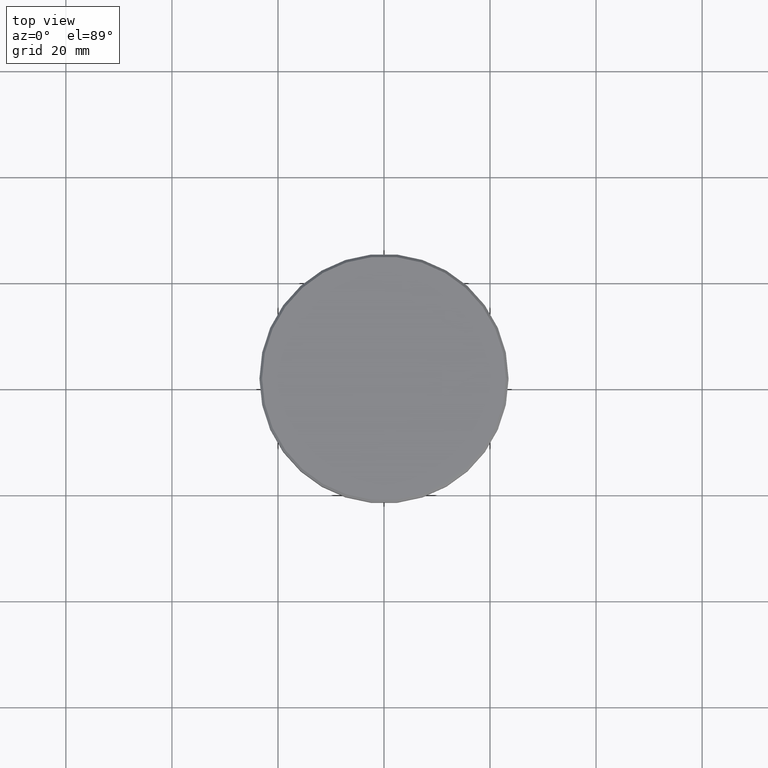
[diagram: clean part render]
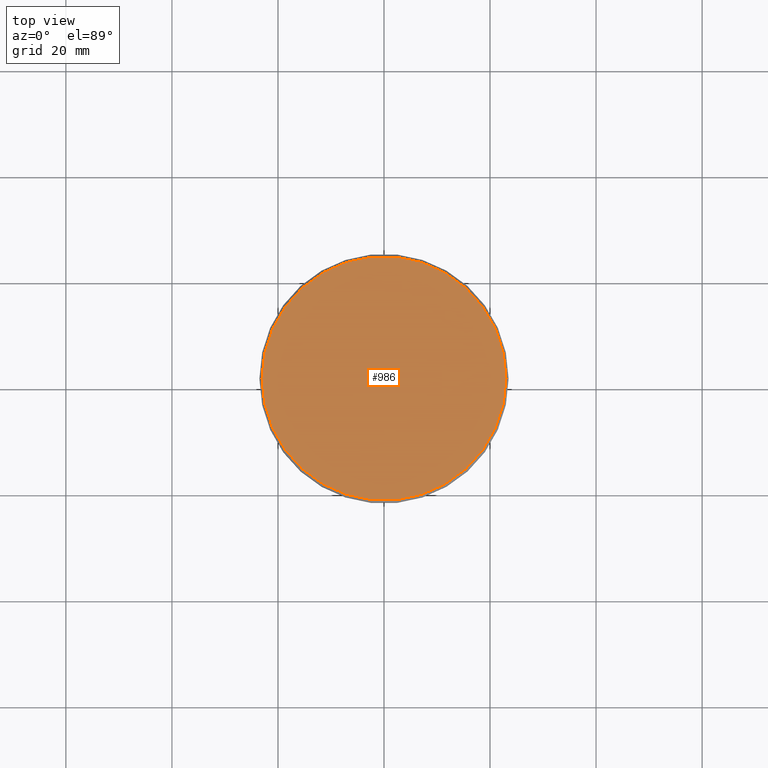
[diagram: same view with one face highlighted and labeled with its STEP entity id]
A machine part, top view. The second image highlights one B-rep face of the part: STEP entity #986.
In plain terms, the highlighted planar face has unit normal (0, -0, 1).
Its self-contained STEP definition (entity closure, byte-faithful):
#46 = DIRECTION ( 'NONE',  ( 1.000000000000000000, 0.000000000000000000, 0.000000000000000000 ) ) ;
#148 = DIRECTION ( 'NONE',  ( 1.000000000000000000, 0.000000000000000000, 0.000000000000000000 ) ) ;
#206 = VERTEX_POINT ( 'NONE', #440 ) ;
#380 = CARTESIAN_POINT ( 'NONE',  ( 0.000000000000000000, 0.000000000000000000, 0.000000000000000000 ) ) ;
#440 = CARTESIAN_POINT ( 'NONE',  ( 22.99999999999998224, 2.847303808017595350E-15, 0.000000000000000000 ) ) ;
#465 = DIRECTION ( 'NONE',  ( 1.000000000000000000, 0.000000000000000000, 0.000000000000000000 ) ) ;
#505 = CARTESIAN_POINT ( 'NONE',  ( 0.000000000000000000, 0.000000000000000000, 0.000000000000000000 ) ) ;
#516 = CARTESIAN_POINT ( 'NONE',  ( 0.000000000000000000, 0.000000000000000000, 0.000000000000000000 ) ) ;
#524 = PLANE ( 'NONE',  #688 ) ;
#555 = DIRECTION ( 'NONE',  ( -0.000000000000000000, -0.000000000000000000, 1.000000000000000000 ) ) ;
#563 = CIRCLE ( 'NONE', #1016, 22.99999999999998224 ) ;
#566 = EDGE_CURVE ( 'NONE', #731, #206, #563, .T. ) ;
#570 = ORIENTED_EDGE ( 'NONE', *, *, #723, .T. ) ;
#630 = EDGE_LOOP ( 'NONE', ( #1142, #570 ) ) ;
#688 = AXIS2_PLACEMENT_3D ( 'NONE', #516, #695, #148 ) ;
#695 = DIRECTION ( 'NONE',  ( 0.000000000000000000, -0.000000000000000000, 1.000000000000000000 ) ) ;
#700 = DIRECTION ( 'NONE',  ( -0.000000000000000000, -0.000000000000000000, 1.000000000000000000 ) ) ;
#723 = EDGE_CURVE ( 'NONE', #206, #731, #856, .T. ) ;
#730 = AXIS2_PLACEMENT_3D ( 'NONE', #380, #555, #465 ) ;
#731 = VERTEX_POINT ( 'NONE', #810 ) ;
#810 = CARTESIAN_POINT ( 'NONE',  ( -22.99999999999998224, 0.000000000000000000, 0.000000000000000000 ) ) ;
#856 = CIRCLE ( 'NONE', #730, 22.99999999999998224 ) ;
#969 = FACE_OUTER_BOUND ( 'NONE', #630, .T. ) ;
#986 = ADVANCED_FACE ( 'NONE', ( #969 ), #524, .T. ) ;
#1016 = AXIS2_PLACEMENT_3D ( 'NONE', #505, #700, #46 ) ;
#1142 = ORIENTED_EDGE ( 'NONE', *, *, #566, .T. ) ;